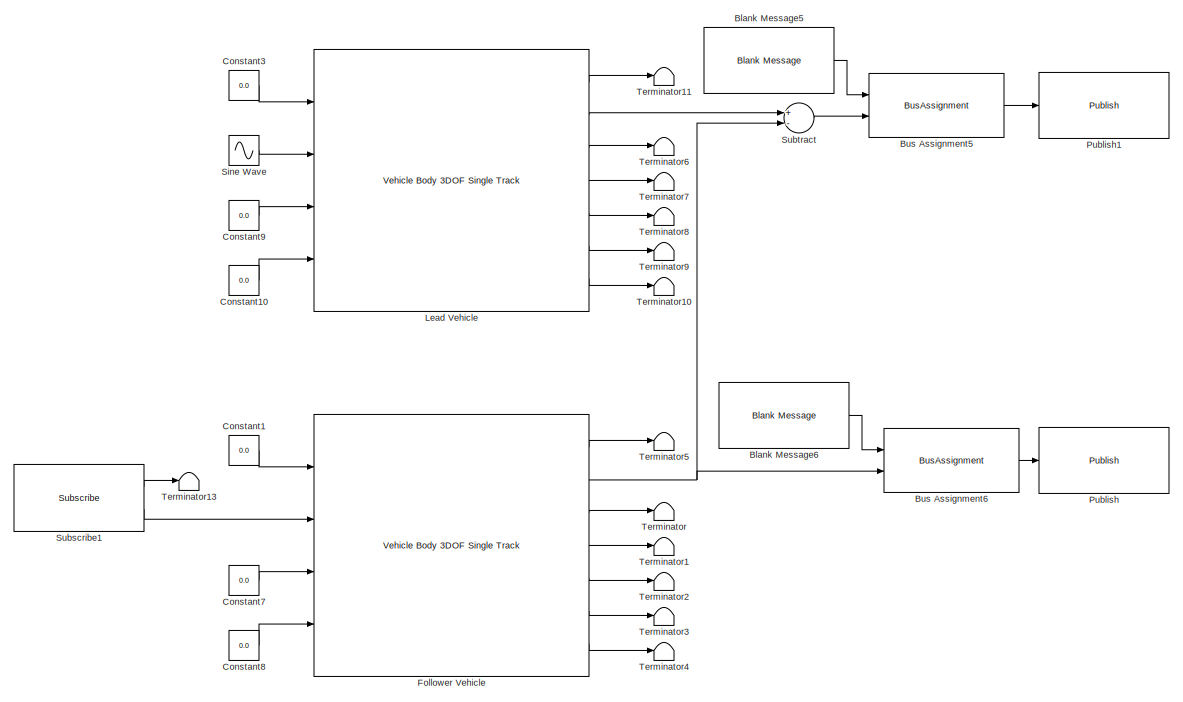
[diagram: root canvas - part 1/2, full width, top band]
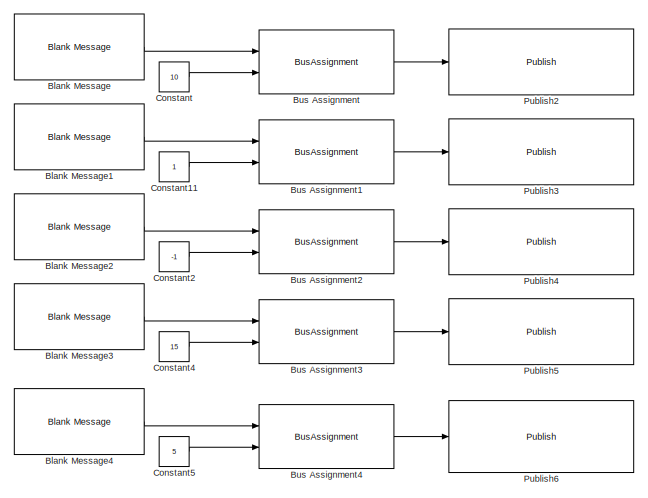
[diagram: root canvas - part 2/2, bottom left region]
MODEL slx_e414bb6f5199
KIND model
CONFIG AbsTol = auto
CONFIG EnableMultiTasking = off
CONFIG FixedStep = auto
CONFIG MaxStep = auto
CONFIG MinStep = auto
CONFIG RelTol = 1e-3
CONFIG SampleTimeConstraint = Unconstrained
CONFIG Solver = VariableStepAuto
CONFIG SolverName = VariableStepAuto
CONFIG StartTime = 0.0
CONFIG StopTime = inf
BLOCK [Reference] Blank Message  REF=robotlib/Blank Message
  Ports = [0, 1]
  SourceBlock = robotlib/Blank Message
  SourceProductBaseCode = RO
  SourceProductName = Robotics System Toolbox
  SourceType = ROS Blank Message
BLOCK [Reference] Blank Message1  REF=robotlib/Blank Message
  Ports = [0, 1]
  SourceBlock = robotlib/Blank Message
  SourceProductBaseCode = RO
  SourceProductName = Robotics System Toolbox
  SourceType = ROS Blank Message
BLOCK [Reference] Blank Message2  REF=robotlib/Blank Message
  Ports = [0, 1]
  SourceBlock = robotlib/Blank Message
  SourceProductBaseCode = RO
  SourceProductName = Robotics System Toolbox
  SourceType = ROS Blank Message
BLOCK [Reference] Blank Message3  REF=robotlib/Blank Message
  Ports = [0, 1]
  SourceBlock = robotlib/Blank Message
  SourceProductBaseCode = RO
  SourceProductName = Robotics System Toolbox
  SourceType = ROS Blank Message
BLOCK [Reference] Blank Message4  REF=robotlib/Blank Message
  Ports = [0, 1]
  SourceBlock = robotlib/Blank Message
  SourceProductBaseCode = RO
  SourceProductName = Robotics System Toolbox
  SourceType = ROS Blank Message
BLOCK [Reference] Blank Message5  REF=robotlib/Blank Message
  Ports = [0, 1]
  SourceBlock = robotlib/Blank Message
  SourceProductBaseCode = RO
  SourceProductName = Robotics System Toolbox
  SourceType = ROS Blank Message
BLOCK [Reference] Blank Message6  REF=robotlib/Blank Message
  Ports = [0, 1]
  SourceBlock = robotlib/Blank Message
  SourceProductBaseCode = RO
  SourceProductName = Robotics System Toolbox
  SourceType = ROS Blank Message
BLOCK [BusAssignment] Bus Assignment
  AssignedSignals = X
  Ports = [2, 1]
BLOCK [BusAssignment] Bus Assignment1
  AssignedSignals = X
  Ports = [2, 1]
BLOCK [BusAssignment] Bus Assignment2
  AssignedSignals = X
  Ports = [2, 1]
BLOCK [BusAssignment] Bus Assignment3
  AssignedSignals = X
  Ports = [2, 1]
BLOCK [BusAssignment] Bus Assignment4
  AssignedSignals = X
  Ports = [2, 1]
BLOCK [BusAssignment] Bus Assignment5
  AssignedSignals = X
  Ports = [2, 1]
BLOCK [BusAssignment] Bus Assignment6
  AssignedSignals = X
  Ports = [2, 1]
BLOCK [Constant] Constant
  Value = 10
BLOCK [Constant] Constant1
  Value = 0.0
BLOCK [Constant] Constant10
  Value = 0.0
BLOCK [Constant] Constant11
BLOCK [Constant] Constant2
  Value = -1
BLOCK [Constant] Constant3
  Value = 0.0
BLOCK [Constant] Constant4
  Value = 15
BLOCK [Constant] Constant5
  Value = 5
BLOCK [Constant] Constant7
  Value = 0.0
BLOCK [Constant] Constant8
  Value = 0.0
BLOCK [Constant] Constant9
  Value = 0.0
BLOCK [Reference] Follower Vehicle  REF=autolibshared/Vehicle Body 3DOF Single Track
  Ports = [4, 7]
  SourceBlock = autolibshared/Vehicle Body 3DOF Single Track
  SourceProductBaseCode = PW
  SourceProductName = Powertrain Blockset
  SourceType = Vehicle Body 3DOF Lateral
BLOCK [Reference] Lead Vehicle  REF=autolibshared/Vehicle Body 3DOF Single Track
  Ports = [4, 7]
  SourceBlock = autolibshared/Vehicle Body 3DOF Single Track
  SourceProductBaseCode = PW
  SourceProductName = Powertrain Blockset
  SourceType = Vehicle Body 3DOF Lateral
BLOCK [Reference] Publish  REF=robotlib/Publish
  Ports = [1]
  SourceBlock = robotlib/Publish
  SourceProductBaseCode = RO
  SourceProductName = Robotics System Toolbox
  SourceType = ROS Publish
BLOCK [Reference] Publish1  REF=robotlib/Publish
  Ports = [1]
  SourceBlock = robotlib/Publish
  SourceProductBaseCode = RO
  SourceProductName = Robotics System Toolbox
  SourceType = ROS Publish
BLOCK [Reference] Publish2  REF=robotlib/Publish
  Ports = [1]
  SourceBlock = robotlib/Publish
  SourceProductBaseCode = RO
  SourceProductName = Robotics System Toolbox
  SourceType = ROS Publish
BLOCK [Reference] Publish3  REF=robotlib/Publish
  Ports = [1]
  SourceBlock = robotlib/Publish
  SourceProductBaseCode = RO
  SourceProductName = Robotics System Toolbox
  SourceType = ROS Publish
BLOCK [Reference] Publish4  REF=robotlib/Publish
  Ports = [1]
  SourceBlock = robotlib/Publish
  SourceProductBaseCode = RO
  SourceProductName = Robotics System Toolbox
  SourceType = ROS Publish
BLOCK [Reference] Publish5  REF=robotlib/Publish
  Ports = [1]
  SourceBlock = robotlib/Publish
  SourceProductBaseCode = RO
  SourceProductName = Robotics System Toolbox
  SourceType = ROS Publish
BLOCK [Reference] Publish6  REF=robotlib/Publish
  Ports = [1]
  SourceBlock = robotlib/Publish
  SourceProductBaseCode = RO
  SourceProductName = Robotics System Toolbox
  SourceType = ROS Publish
BLOCK [Sin] Sine Wave
  Amplitude = 3
  Bias = 3
  Frequency = 3
  Ports = [0, 1]
  SampleTime = 0
BLOCK [Reference] Subscribe1  REF=robotlib/Subscribe
  Ports = [0, 2]
  SourceBlock = robotlib/Subscribe
  SourceProductBaseCode = RO
  SourceProductName = Robotics System Toolbox
  SourceType = ROS Subscribe
BLOCK [Sum] Subtract
  InputSameDT = off
  Inputs = +-
  OutDataTypeStr = Inherit: Inherit via internal rule
  Ports = [2, 1]
  SaturateOnIntegerOverflow = off
BLOCK [Terminator] Terminator
BLOCK [Terminator] Terminator1
BLOCK [Terminator] Terminator10
BLOCK [Terminator] Terminator11
BLOCK [Terminator] Terminator13
BLOCK [Terminator] Terminator2
BLOCK [Terminator] Terminator3
BLOCK [Terminator] Terminator4
BLOCK [Terminator] Terminator5
BLOCK [Terminator] Terminator6
BLOCK [Terminator] Terminator7
BLOCK [Terminator] Terminator8
BLOCK [Terminator] Terminator9
LINE Blank Message1:1 -> Bus Assignment1:1
LINE Blank Message2:1 -> Bus Assignment2:1
LINE Blank Message3:1 -> Bus Assignment3:1
LINE Blank Message4:1 -> Bus Assignment4:1
LINE Blank Message5:1 -> Bus Assignment5:1
LINE Blank Message6:1 -> Bus Assignment6:1
LINE Blank Message:1 -> Bus Assignment:1
LINE Bus Assignment1:1 -> Publish3:1
LINE Bus Assignment2:1 -> Publish4:1
LINE Bus Assignment3:1 -> Publish5:1
LINE Bus Assignment4:1 -> Publish6:1
LINE Bus Assignment5:1 -> Publish1:1
LINE Bus Assignment6:1 -> Publish:1
LINE Bus Assignment:1 -> Publish2:1
LINE Constant10:1 -> Lead Vehicle:4
LINE Constant11:1 -> Bus Assignment1:2
LINE Constant1:1 -> Follower Vehicle:1
LINE Constant2:1 -> Bus Assignment2:2
LINE Constant3:1 -> Lead Vehicle:1
LINE Constant4:1 -> Bus Assignment3:2
LINE Constant5:1 -> Bus Assignment4:2
LINE Constant7:1 -> Follower Vehicle:3
LINE Constant8:1 -> Follower Vehicle:4
LINE Constant9:1 -> Lead Vehicle:3
LINE Constant:1 -> Bus Assignment:2
LINE Follower Vehicle:1 -> Terminator5:1
NET Follower Vehicle:2 -> Bus Assignment6:2, Subtract:2
LINE Follower Vehicle:3 -> Terminator:1
LINE Follower Vehicle:4 -> Terminator1:1
LINE Follower Vehicle:5 -> Terminator2:1
LINE Follower Vehicle:6 -> Terminator3:1
LINE Follower Vehicle:7 -> Terminator4:1
LINE Lead Vehicle:1 -> Terminator11:1
LINE Lead Vehicle:2 -> Subtract:1
LINE Lead Vehicle:3 -> Terminator6:1
LINE Lead Vehicle:4 -> Terminator7:1
LINE Lead Vehicle:5 -> Terminator8:1
LINE Lead Vehicle:6 -> Terminator9:1
LINE Lead Vehicle:7 -> Terminator10:1
LINE Sine Wave:1 -> Lead Vehicle:2
LINE Subscribe1:1 -> Terminator13:1
LINE Subscribe1:2 -> Follower Vehicle:2
LINE Subtract:1 -> Bus Assignment5:2
note: NET lines group one-source signal fan-out (src -> all destinations, sorted); 1:1 wires keep LINE
